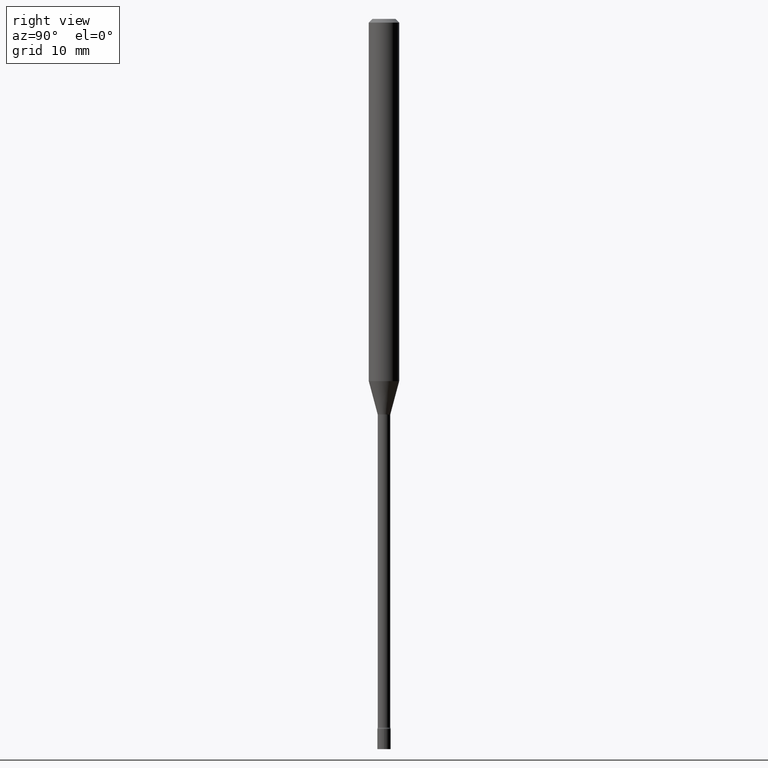
[diagram: clean part render]
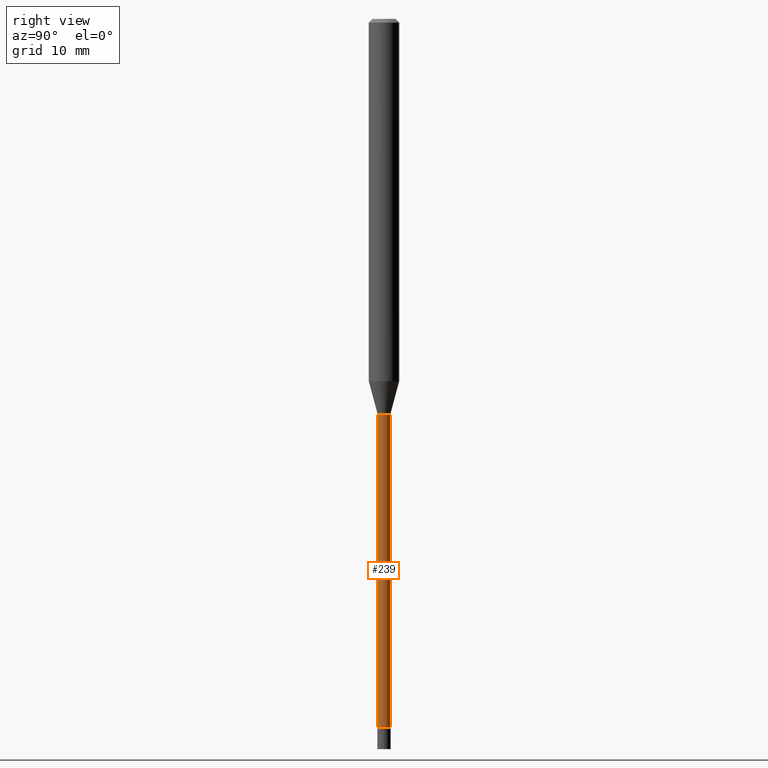
[diagram: same view with one face highlighted and labeled with its STEP entity id]
A machine part, right view. The second image highlights one B-rep face of the part: STEP entity #239.
In plain terms, the highlighted cylindrical surface (edge-blend (fillet) strip) has radius 0.6566 mm, axis along (-0, 0, 1).
Its self-contained STEP definition (entity closure, byte-faithful):
#21 = ORIENTED_EDGE ( 'NONE', *, *, #365, .T. ) ;
#22 = AXIS2_PLACEMENT_3D ( 'NONE', #368, #493, #414 ) ;
#43 = CARTESIAN_POINT ( 'NONE',  ( 1.836752971940574728E-16, 0.02584999999999431503, -1.626974787463811412 ) ) ;
#54 = ORIENTED_EDGE ( 'NONE', *, *, #328, .F. ) ;
#57 = LINE ( 'NONE', #258, #455 ) ;
#70 = EDGE_LOOP ( 'NONE', ( #105, #21, #318, #54 ) ) ;
#89 = CARTESIAN_POINT ( 'NONE',  ( -1.805095852181904702E-16, -0.02585000000000007084, 9.025627730288093194E-17 ) ) ;
#95 = CARTESIAN_POINT ( 'NONE',  ( 1.895372747640785166E-16, 0.02584999999998998516, -2.910160592130893953 ) ) ;
#105 = ORIENTED_EDGE ( 'NONE', *, *, #117, .T. ) ;
#108 = AXIS2_PLACEMENT_3D ( 'NONE', #377, #255, #378 ) ;
#117 = EDGE_CURVE ( 'NONE', #459, #470, #134, .T. ) ;
#130 = FACE_OUTER_BOUND ( 'NONE', #70, .T. ) ;
#134 = CIRCLE ( 'NONE', #233, 0.02585000000000014370 ) ;
#157 = DIRECTION ( 'NONE',  ( -2.445428699565055346E-29, 3.491538773805828826E-15, 1.000000000000000000 ) ) ;
#203 = CYLINDRICAL_SURFACE ( 'NONE', #22, 0.02585000000000007084 ) ;
#229 = VERTEX_POINT ( 'NONE', #43 ) ;
#233 = AXIS2_PLACEMENT_3D ( 'NONE', #352, #157, #364 ) ;
#239 = ADVANCED_FACE ( 'NONE', ( #130 ), #203, .T. ) ;
#255 = DIRECTION ( 'NONE',  ( -2.445428699565055346E-29, 3.491538773805828826E-15, 1.000000000000000000 ) ) ;
#258 = CARTESIAN_POINT ( 'NONE',  ( 1.836752971939863767E-16, 0.02585000000000007084, -9.025627730288093194E-17 ) ) ;
#286 = CIRCLE ( 'NONE', #108, 0.02584999999999999451 ) ;
#318 = ORIENTED_EDGE ( 'NONE', *, *, #474, .F. ) ;
#328 = EDGE_CURVE ( 'NONE', #459, #354, #456, .T. ) ;
#352 = CARTESIAN_POINT ( 'NONE',  ( 7.116590232340123908E-29, -1.016093854542674699E-14, -2.910160592130893953 ) ) ;
#354 = VERTEX_POINT ( 'NONE', #371 ) ;
#364 = DIRECTION ( 'NONE',  ( -6.982962677686266711E-15, -1.000000000000000000, 0.000000000000000000 ) ) ;
#365 = EDGE_CURVE ( 'NONE', #470, #229, #57, .T. ) ;
#368 = CARTESIAN_POINT ( 'NONE',  ( 0.000000000000000000, 0.000000000000000000, 0.000000000000000000 ) ) ;
#371 = CARTESIAN_POINT ( 'NONE',  ( -1.805095852181501643E-16, -0.02585000000000567746, -1.626974787463811412 ) ) ;
#377 = CARTESIAN_POINT ( 'NONE',  ( 3.978650838732760149E-29, -5.680645554434395144E-15, -1.626974787463811412 ) ) ;
#378 = DIRECTION ( 'NONE',  ( -6.982962677686266711E-15, -1.000000000000000000, 0.000000000000000000 ) ) ;
#414 = DIRECTION ( 'NONE',  ( -6.982962677686265922E-15, -1.000000000000000000, 3.491538773805829221E-15 ) ) ;
#415 = CARTESIAN_POINT ( 'NONE',  ( -1.805095852181198424E-16, -0.02585000000001030224, -2.910160592130893953 ) ) ;
#418 = DIRECTION ( 'NONE',  ( -2.445428699565055346E-29, 3.491538773805828432E-15, 1.000000000000000000 ) ) ;
#455 = VECTOR ( 'NONE', #418, 39.37007874015748143 ) ;
#456 = LINE ( 'NONE', #89, #506 ) ;
#459 = VERTEX_POINT ( 'NONE', #415 ) ;
#470 = VERTEX_POINT ( 'NONE', #95 ) ;
#474 = EDGE_CURVE ( 'NONE', #354, #229, #286, .T. ) ;
#489 = DIRECTION ( 'NONE',  ( -2.445428699565055346E-29, 3.491538773805828432E-15, 1.000000000000000000 ) ) ;
#493 = DIRECTION ( 'NONE',  ( -2.445428699565055346E-29, 3.491538773805828826E-15, 1.000000000000000000 ) ) ;
#506 = VECTOR ( 'NONE', #489, 39.37007874015748143 ) ;